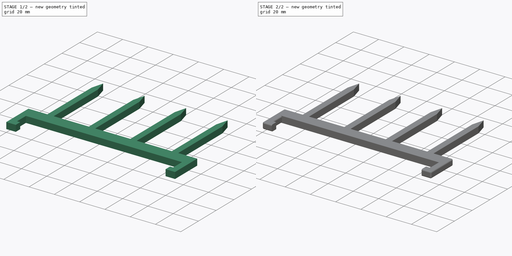
[diagram: build sequence overview — one tinted view per stage of 2, left to right]
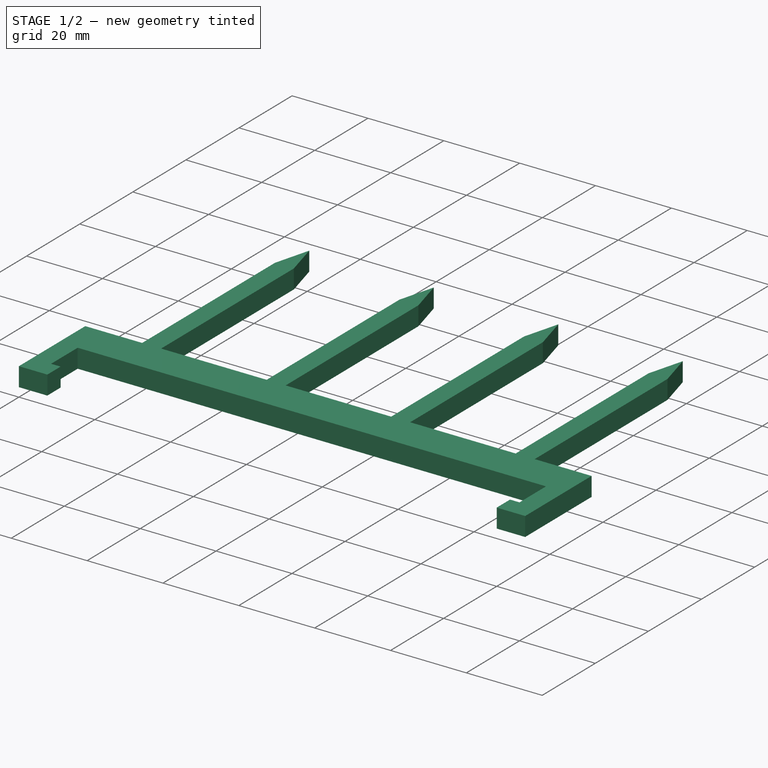
[diagram: stage 1 of 2 — iso view after this stage's code; geometry added in this stage tinted green]
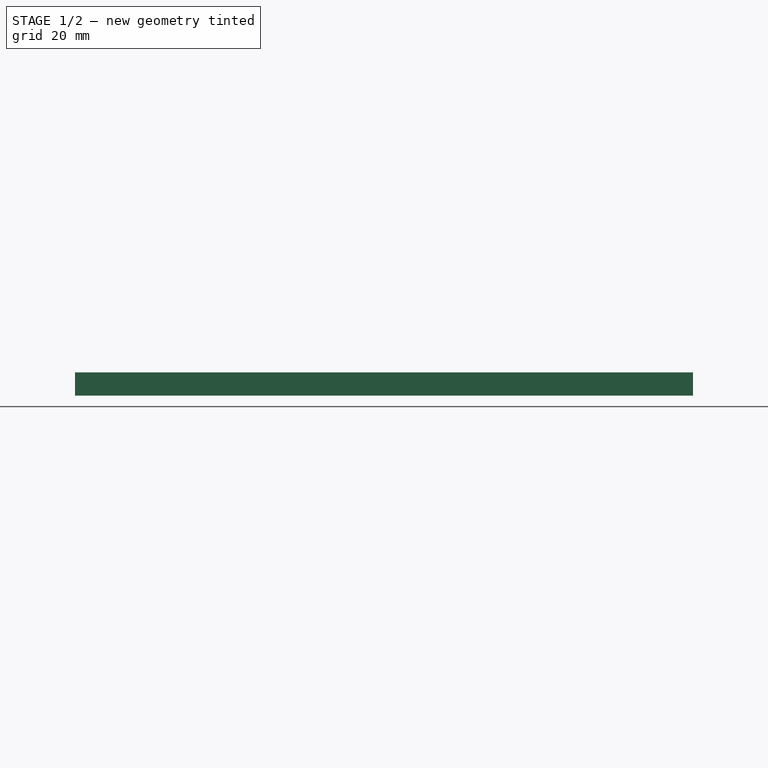
[diagram: stage 1 of 2 — front view after this stage's code; geometry added in this stage tinted green]
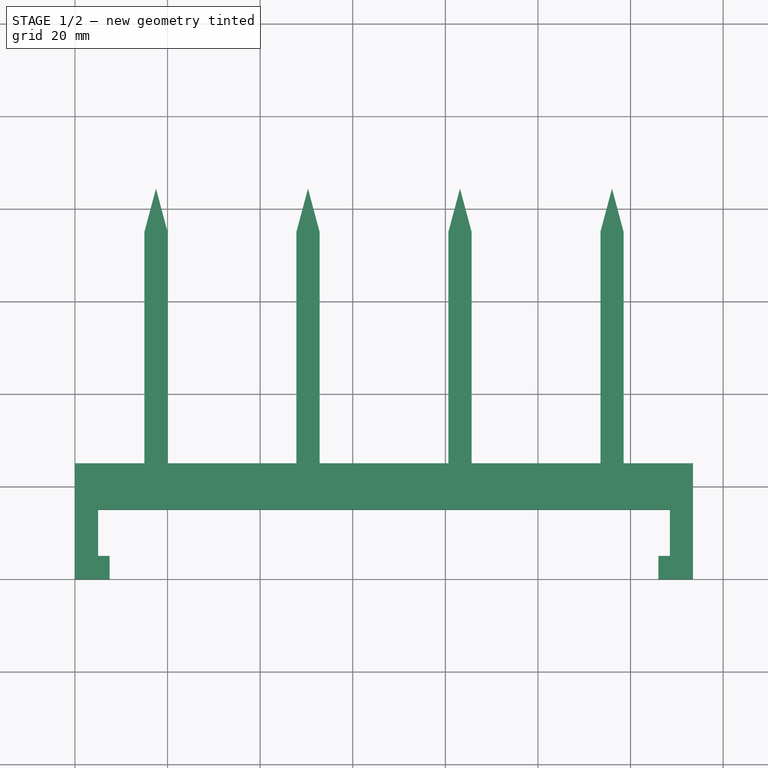
[diagram: stage 1 of 2 — top view after this stage's code; geometry added in this stage tinted green]
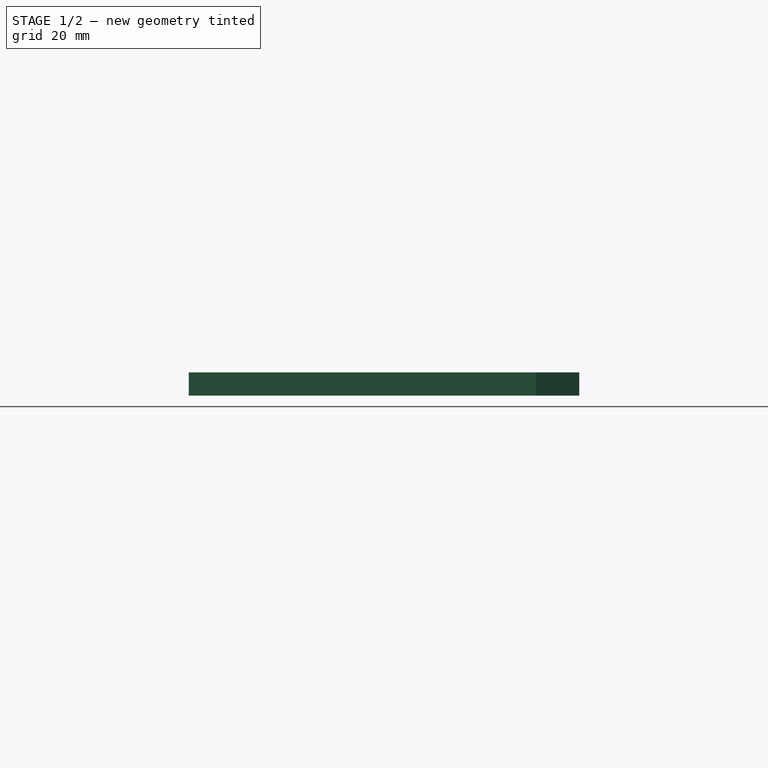
[diagram: stage 1 of 2 — right view after this stage's code; geometry added in this stage tinted green]
FCSTD DOCUMENT  (FreeCAD 0.19R)
Label: balkon_pfosten
License: All rights reserved
LicenseURL: http://en.wikipedia.org/wiki/All_rights_reserved
objects: Sketcher::SketchObject×1, PartDesign::Pad×1, PartDesign::Fillet×1, PartDesign::Body×1
note: 6 computed .brp shape members not serialized (recipe doc carries the construction recipe); baked Part::Feature solids carry a one-line shape summary decoded from their .brp

FEATURE [Sketcher::SketchObject] Sketch
  FullyConstrained = true
  MapMode = 5
  Support = -> [XY_Plane]
  sketch-geometry (32):
    g0: LineSegment StartX=0 StartY=0 StartZ=0 EndX=7.5 EndY=0 EndZ=0
    g1: LineSegment StartX=7.5 StartY=0 StartZ=0 EndX=7.5 EndY=5 EndZ=0
    g2: LineSegment StartX=7.5 StartY=5 StartZ=0 EndX=5 EndY=5 EndZ=0
    g3: LineSegment StartX=5 StartY=5 StartZ=0 EndX=5 EndY=15 EndZ=0
    g4: LineSegment StartX=5 StartY=15 StartZ=0 EndX=128.5 EndY=15 EndZ=0
    g5: LineSegment StartX=128.5 StartY=15 StartZ=0 EndX=128.5 EndY=5 EndZ=0
    g6: LineSegment StartX=128.5 StartY=5 StartZ=0 EndX=126 EndY=5 EndZ=0
    g7: LineSegment StartX=126 StartY=5 StartZ=0 EndX=126 EndY=0 EndZ=0
    g8: LineSegment StartX=126 StartY=0 StartZ=0 EndX=133.5 EndY=0 EndZ=0
    g9: LineSegment StartX=133.5 StartY=0 StartZ=0 EndX=133.5 EndY=25 EndZ=0
    g10: LineSegment StartX=133.5 StartY=25 StartZ=0 EndX=118.5 EndY=25 EndZ=0
    g11: LineSegment StartX=0 StartY=25 StartZ=0 EndX=0 EndY=0 EndZ=0
    g12: LineSegment StartX=15 StartY=25 StartZ=0 EndX=15 EndY=75 EndZ=0
    g13: LineSegment StartX=15 StartY=75 StartZ=0 EndX=17.5 EndY=84.3301 EndZ=0
    g14: LineSegment StartX=17.5 StartY=84.3301 StartZ=0 EndX=20 EndY=75 EndZ=0
    g15: LineSegment StartX=20 StartY=75 StartZ=0 EndX=20 EndY=25 EndZ=0
    g16: LineSegment StartX=47.8333 StartY=25 StartZ=0 EndX=47.8333 EndY=75 EndZ=0
    g17: LineSegment StartX=47.8333 StartY=75 StartZ=0 EndX=50.3333 EndY=84.3301 EndZ=0
    g18: LineSegment StartX=50.3333 StartY=84.3301 StartZ=0 EndX=52.8333 EndY=75 EndZ=0
    g19: LineSegment StartX=52.8333 StartY=75 StartZ=0 EndX=52.8333 EndY=25 EndZ=0
    g20: LineSegment StartX=80.6667 StartY=25 StartZ=0 EndX=80.6667 EndY=75 EndZ=0
    g21: LineSegment StartX=80.6667 StartY=75 StartZ=0 EndX=83.1667 EndY=84.3301 EndZ=0
    g22: LineSegment StartX=83.1667 StartY=84.3301 StartZ=0 EndX=85.6667 EndY=75 EndZ=0
    g23: LineSegment StartX=85.6667 StartY=75 StartZ=0 EndX=85.6667 EndY=25 EndZ=0
    g24: LineSegment StartX=113.5 StartY=25 StartZ=0 EndX=113.5 EndY=75 EndZ=0
    g25: LineSegment StartX=113.5 StartY=75 StartZ=0 EndX=116 EndY=84.3301 EndZ=0
    g26: LineSegment StartX=116 StartY=84.3301 StartZ=0 EndX=118.5 EndY=75 EndZ=0
    g27: LineSegment StartX=118.5 StartY=75 StartZ=0 EndX=118.5 EndY=25 EndZ=0
    g28: LineSegment StartX=15 StartY=25 StartZ=0 EndX=0 EndY=25 EndZ=0
    g29: LineSegment StartX=47.8333 StartY=25 StartZ=0 EndX=20 EndY=25 EndZ=0
    g30: LineSegment StartX=80.6667 StartY=25 StartZ=0 EndX=52.8333 EndY=25 EndZ=0
    g31: LineSegment StartX=113.5 StartY=25 StartZ=0 EndX=85.6667 EndY=25 EndZ=0
  constraints (91):
    c: Coincident(g-1,g0)
    c: PointOnObject(g0,g-1)
    c: Coincident(g0,g1)
    c: Vertical(g1)
    c: Coincident(g1,g2)
    c: Coincident(g2,g3)
    c: Coincident(g3,g4)
    c: Horizontal(g4)
    c: Coincident(g4,g5)
    c: Coincident(g5,g6)
    c: Horizontal(g6)
    c: Coincident(g6,g7)
    c: PointOnObject(g7,g-1)
    c: Vertical(g7)
    c: Coincident(g7,g8)
    c: PointOnObject(g8,g-1)
    c: Coincident(g8,g9)
    c: Vertical(g9)
    c: Coincident(g9,g10)
    c: PointOnObject(g28,g-2)
    c: Horizontal(g10)
    c: Coincident(g28,g11)
    c: Coincident(g11,g0)
    c: Equal(g3,g5)
    c: Horizontal(g2)
    c: Equal(g2,g6)
    c: Equal(g0,g8)
    c: Vertical(g3)
    c: Vertical(g5)
    c: DistanceY(g3,g28) = 10
    c: DistanceY(g2,g3) = 10
    c: DistanceX(g2,g1) = 2.5
    c: DistanceX(g28,g3) = 5
    c: DistanceY(g0,g2) = 5
    c: DistanceX(g0,g7) = 118.5
    c: Vertical(g12)
    c: Coincident(g12,g13)
    c: Coincident(g13,g14)
    c: Coincident(g14,g15)
    c: Vertical(g15)
    c: Vertical(g16)
    c: Coincident(g16,g17)
    c: Coincident(g17,g18)
    c: Coincident(g18,g19)
    c: Vertical(g19)
    c: Vertical(g20)
    c: Coincident(g20,g21)
    c: Coincident(g21,g22)
    c: Coincident(g22,g23)
    c: Vertical(g23)
    c: Vertical(g24)
    c: Coincident(g24,g25)
    c: Coincident(g25,g26)
    c: Coincident(g26,g27)
    c: Vertical(g27)
    c: Horizontal(g12,g14)
    c: Horizontal(g14,g16)
    c: Horizontal(g16,g18)
    c: Horizontal(g18,g20)
    c: Horizontal(g20,g22)
    c: Horizontal(g22,g24)
    c: Horizontal(g24,g26)
    c: DistanceX(g12,g14) = 5
    c: DistanceX(g16,g18) = 5
    c: DistanceX(g20,g22) = 5
    c: DistanceX(g24,g26) = 5
    c: Horizontal(g13,g17)
    c: Horizontal(g17,g21)
    c: Horizontal(g21,g25)
    c: Angle(g12,g13) = 2.87979
    c: Angle(g14,g15) = 2.87979
    c: Angle(g16,g17) = 2.87979
    c: Angle(g20,g21) = 2.87979
    c: Angle(g24,g25) = 2.87979
    c: Coincident(g29,g15)
    c: Coincident(g28,g12)
    c: Tangent(g10,g28)
    c: Coincident(g30,g19)
    c: Coincident(g29,g16)
    c: Tangent(g10,g29)
    c: Coincident(g31,g23)
    c: Coincident(g30,g20)
    c: Tangent(g10,g30)
    c: Coincident(g10,g27)
    c: Coincident(g31,g24)
    c: Tangent(g10,g31)
    c: Equal(g29,g30)
    c: Equal(g30,g31)
    c: Equal(g28,g10)
    c: DistanceX(g28,g28) = 15
    c: DistanceY(g10,g26) = 50
FEATURE [PartDesign::Pad] Pad
  Direction = (1,1,1)
  Length = 5
  Length2 = 100
  Profile = -> Sketch
  Type = 0
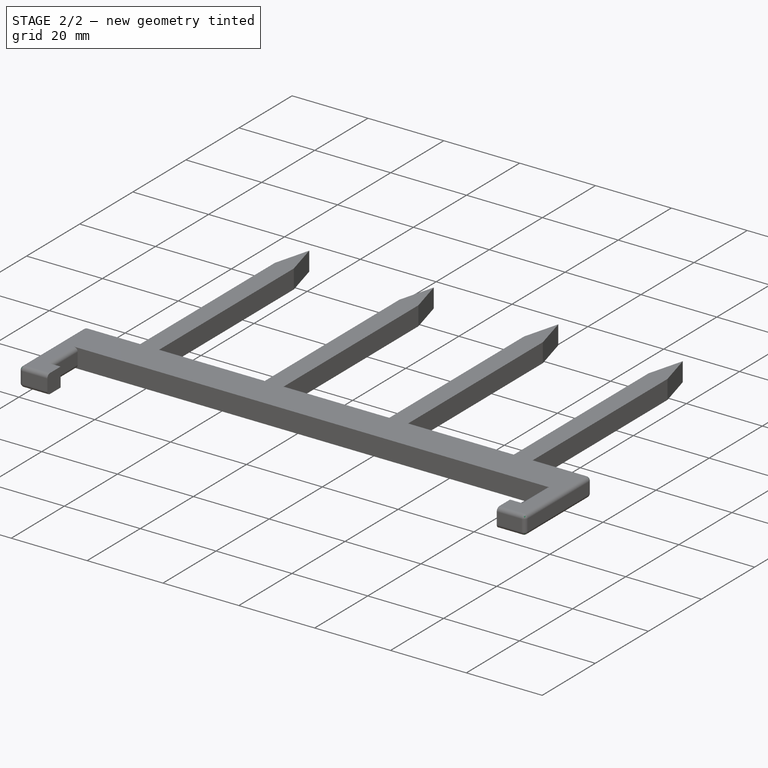
[diagram: stage 2 of 2 — iso view after this stage's code; geometry added in this stage tinted green]
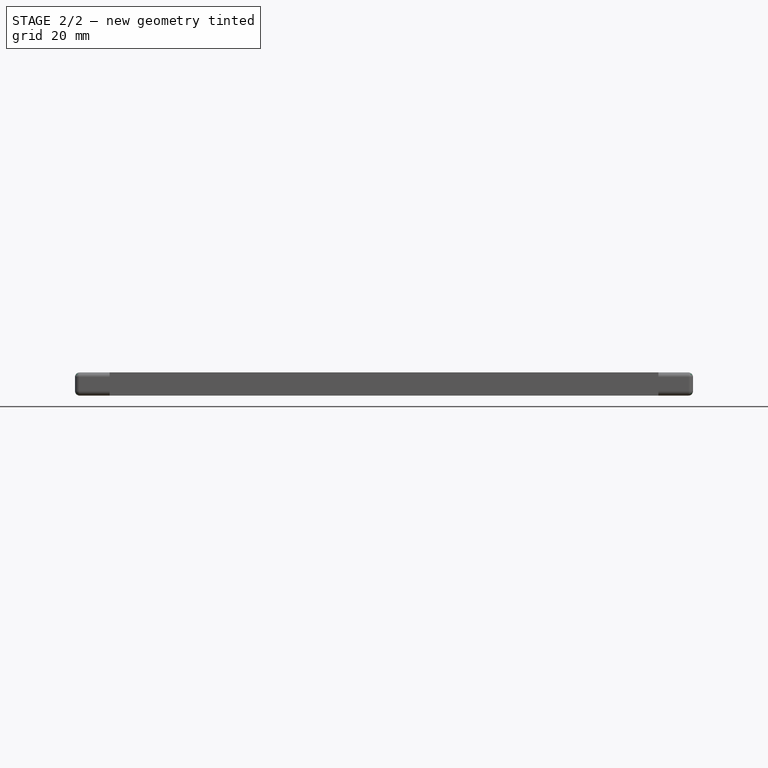
[diagram: stage 2 of 2 — front view after this stage's code; geometry added in this stage tinted green]
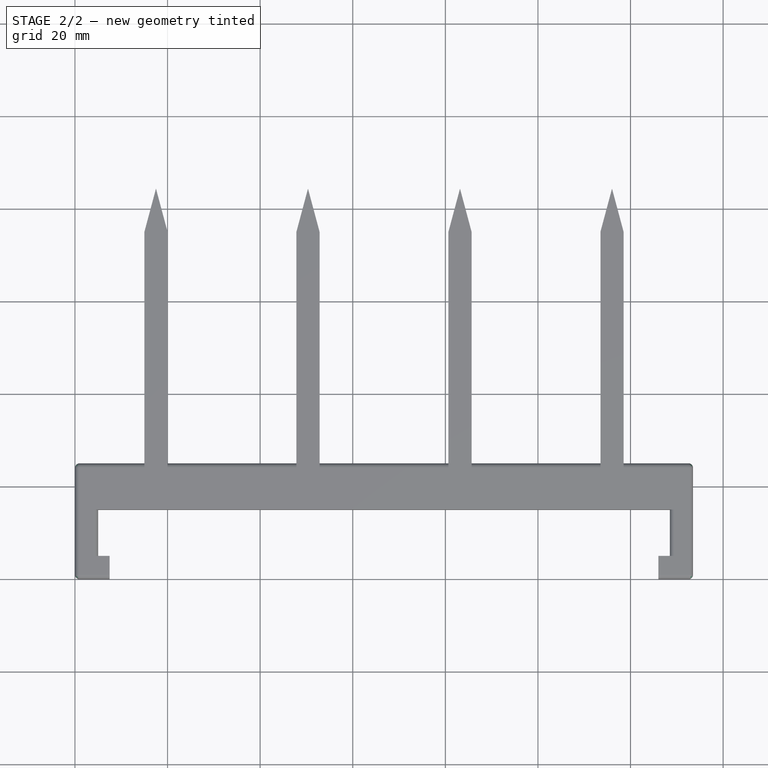
[diagram: stage 2 of 2 — top view after this stage's code; geometry added in this stage tinted green]
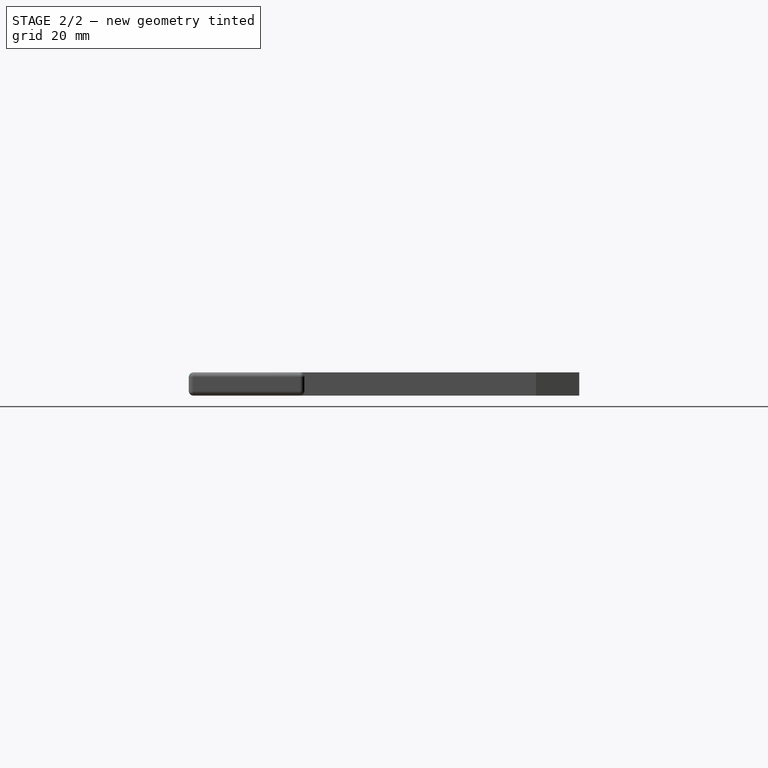
[diagram: stage 2 of 2 — right view after this stage's code; geometry added in this stage tinted green]
FEATURE [PartDesign::Fillet] Fillet
  Base = -> Pad [Edge7,Edge6,Edge10,Edge9,Edge4,Edge85,Edge70,Edge55,Edge40,Edge37,Edge34,Edge32,Edge33,Edge5,Edge3,Edge84,Edge69,Edge54,Edge39,Edge35,Edge36,Edge2,Edge24,Edge25,Edge18,Edge19]
  BaseFeature = -> Pad
  Radius = 1
  SupportTransform = false
FEATURE [PartDesign::Body] Body
  Group = -> [Sketch,Pad,Fillet]
  Origin = -> Origin
  Tip = -> Fillet
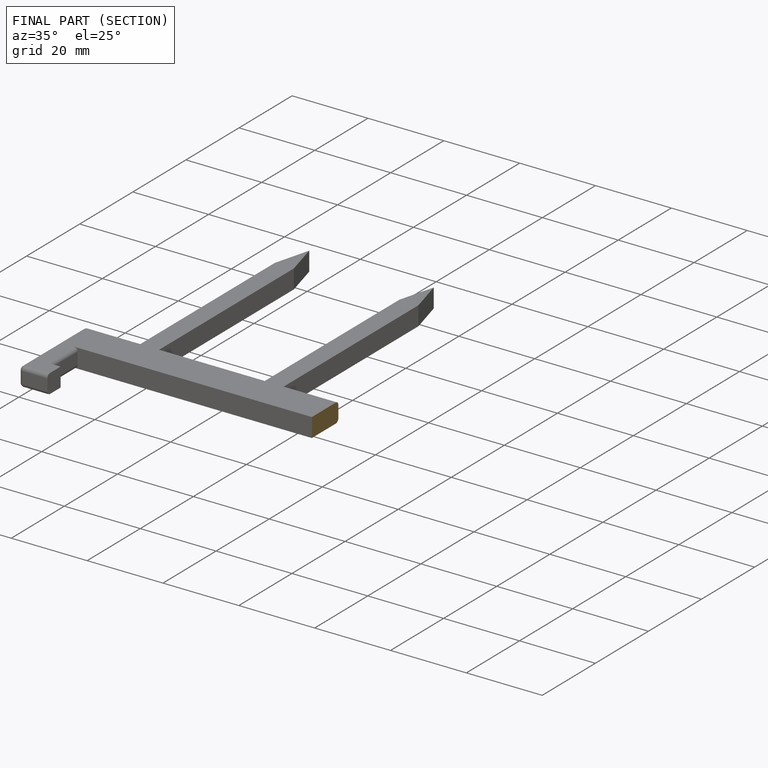
[diagram: finished part — half-section view (interior)]
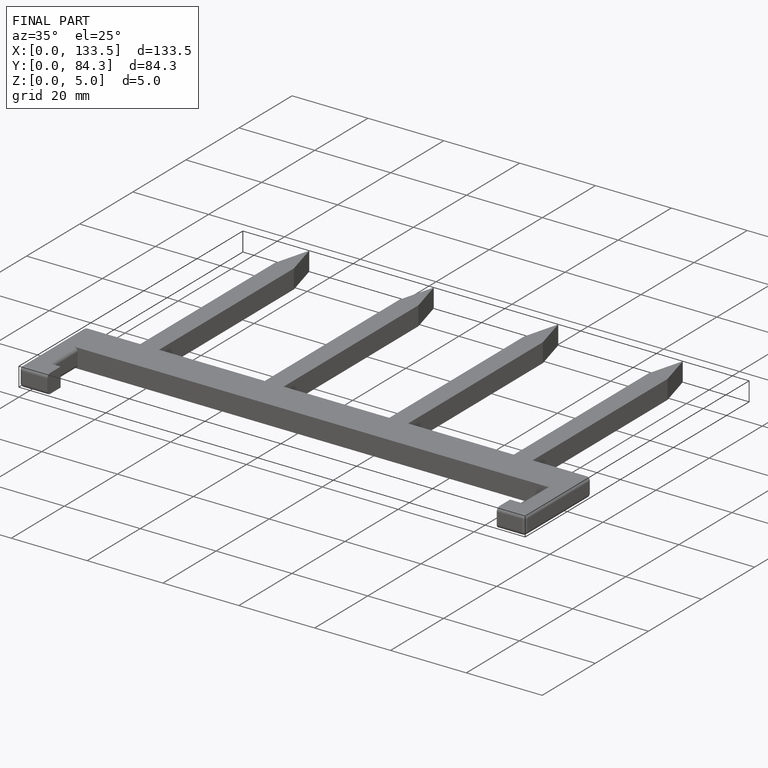
[diagram: finished part — iso view with bounding-box wireframe]
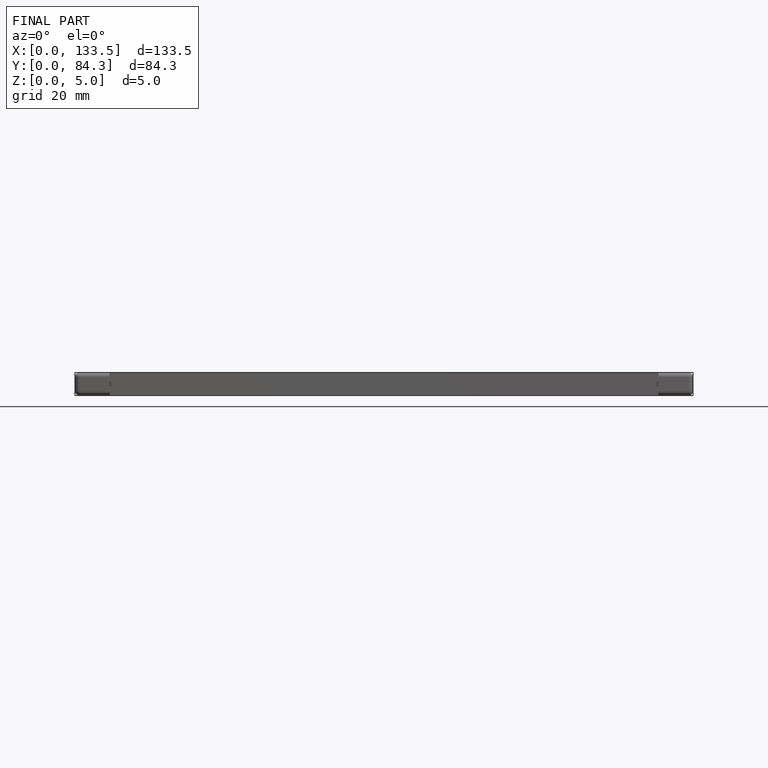
[diagram: finished part — front view with bounding-box wireframe]
